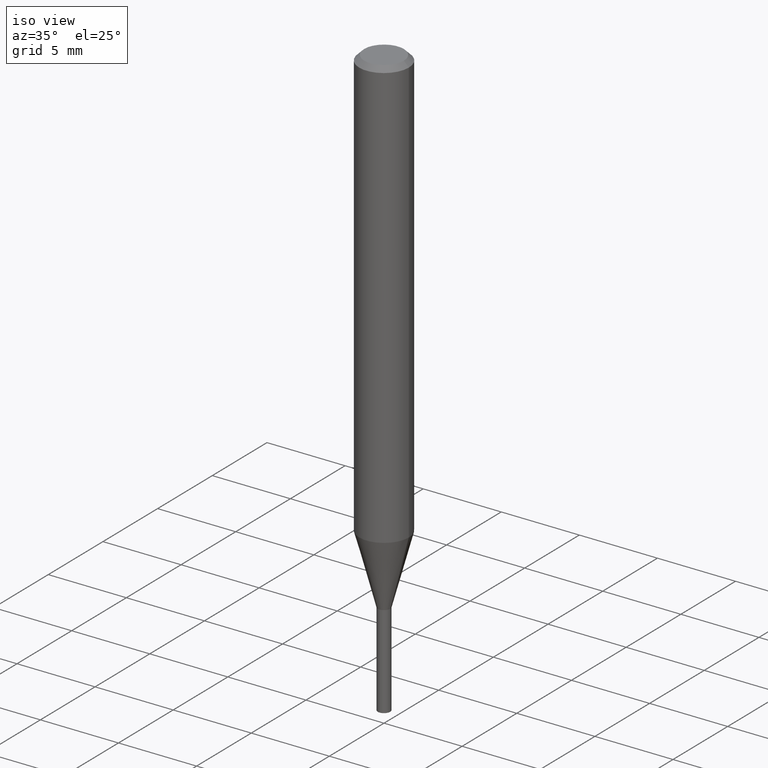
[diagram: clean part render]
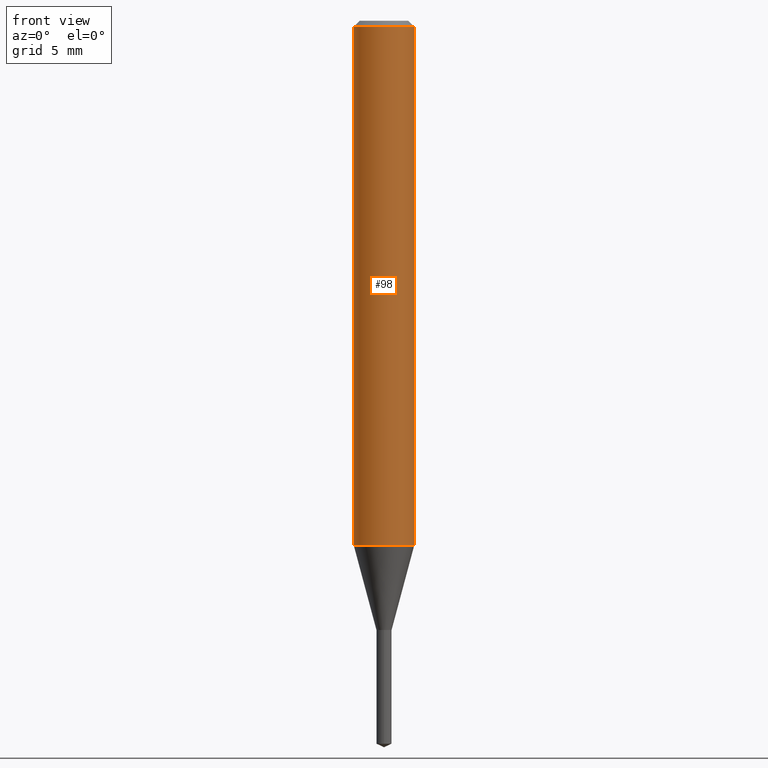
[diagram: tour spotlight — one face highlighted and labeled with its STEP entity id]
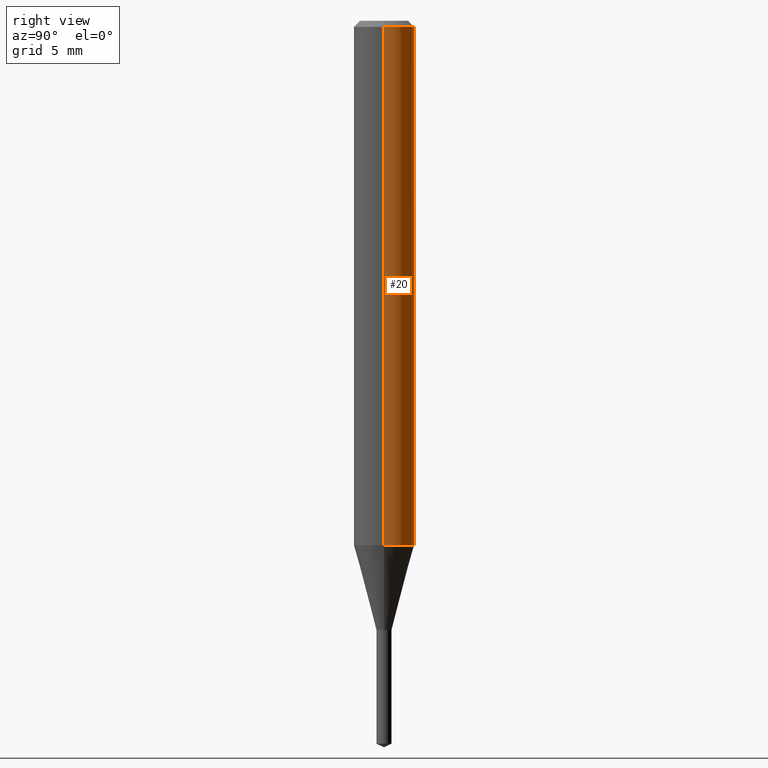
[diagram: tour spotlight — one face highlighted and labeled with its STEP entity id]
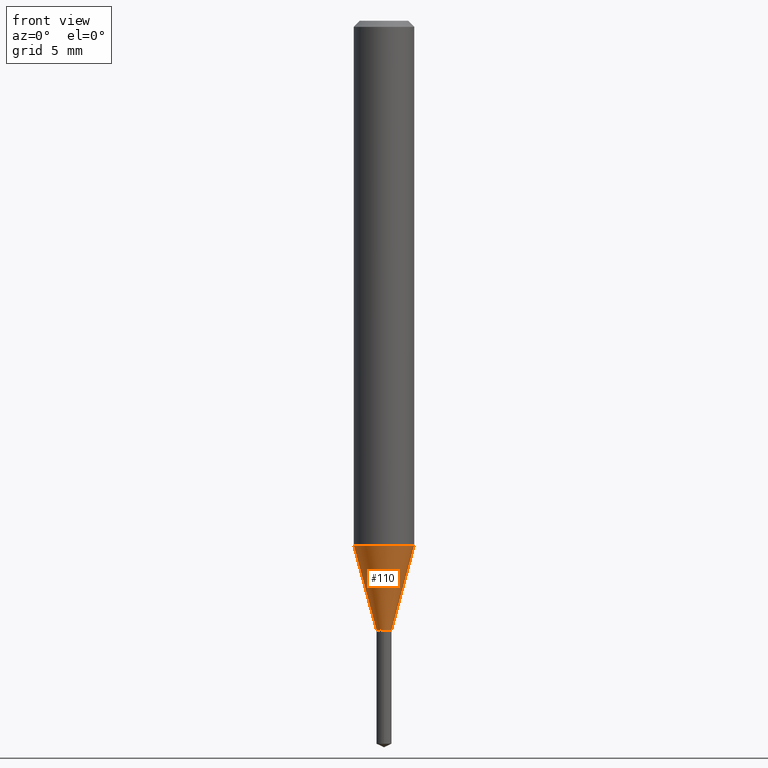
[diagram: tour spotlight — one face highlighted and labeled with its STEP entity id]
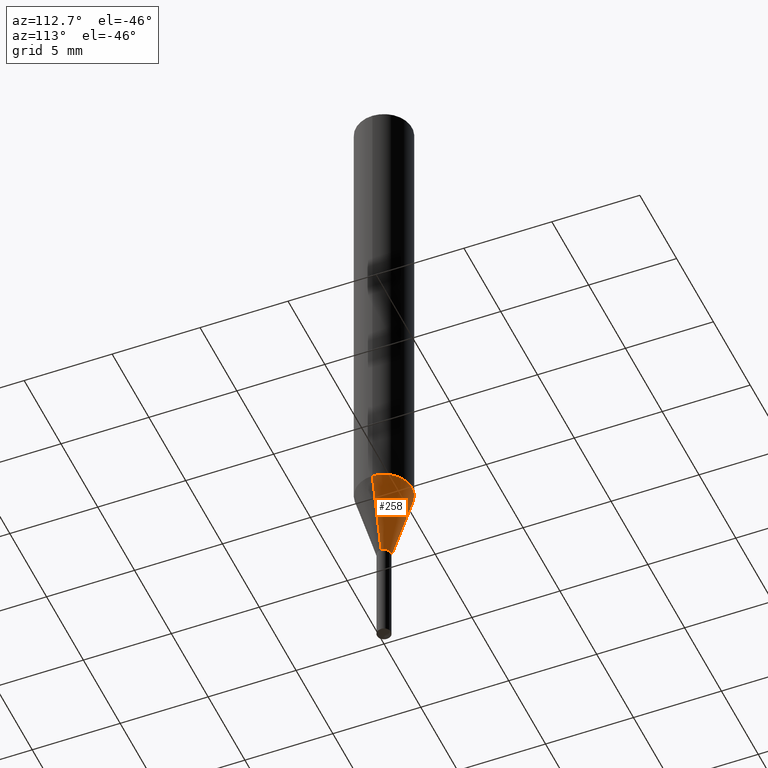
[diagram: tour spotlight — one face highlighted and labeled with its STEP entity id]
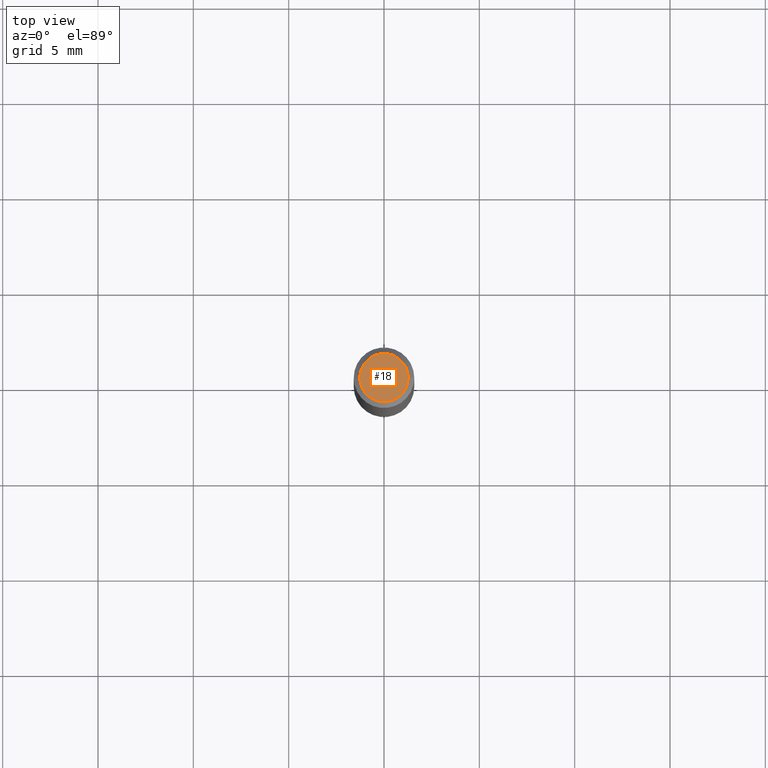
[diagram: tour spotlight — one face highlighted and labeled with its STEP entity id]
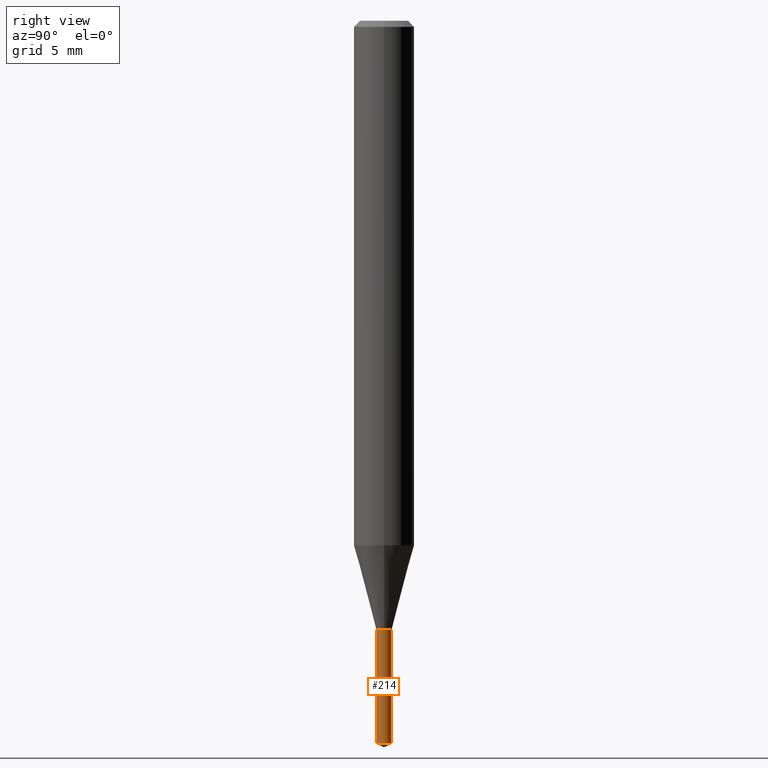
[diagram: tour spotlight — one face highlighted and labeled with its STEP entity id]
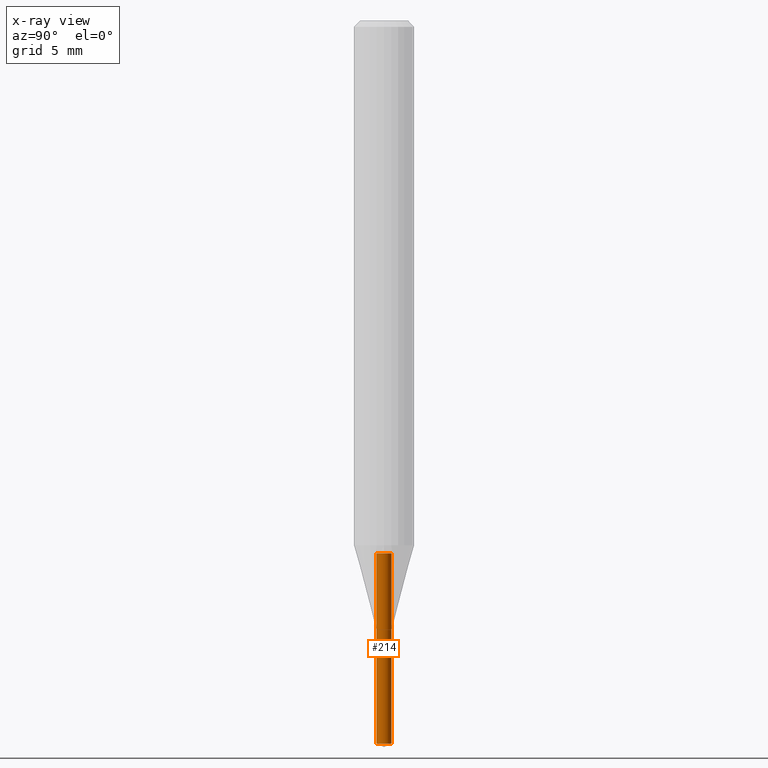
[diagram: x-ray of the same camera — body ghosted, this tour face saturated]
A machine part: a face-by-face anatomy tour. The part has 17 B-rep faces; the first image is the clean iso view, then the 6 largest visible faces are spotlighted one at a time (largest first), each with its STEP entity span.

Face 1 — front view, entity #98. In plain terms, the highlighted cylindrical surface (edge-blend (fillet) strip) has radius 1.5875 mm, axis along (-0, 0, 1).
Definition (entity closure, byte-faithful):
#14 = EDGE_CURVE ( 'NONE', #121, #303, #164, .T. ) ;
#35 = ORIENTED_EDGE ( 'NONE', *, *, #107, .T. ) ;
#49 = ORIENTED_EDGE ( 'NONE', *, *, #14, .F. ) ;
#55 = VECTOR ( 'NONE', #322, 39.37007874015748143 ) ;
#57 = CARTESIAN_POINT ( 'NONE',  ( 0.06250000000000013878, -4.217593599933773657E-15, -1.082966817125024628 ) ) ;
#76 = CIRCLE ( 'NONE', #366, 0.06250000000000013878 ) ;
#98 = ADVANCED_FACE ( 'NONE', ( #435 ), #248, .T. ) ;
#104 = DIRECTION ( 'NONE',  ( -2.445468806185136877E-29, 3.491481338843145188E-15, 1.000000000000000000 ) ) ;
#107 = EDGE_CURVE ( 'NONE', #179, #381, #76, .T. ) ;
#109 = AXIS2_PLACEMENT_3D ( 'NONE', #450, #342, #160 ) ;
#121 = VERTEX_POINT ( 'NONE', #209 ) ;
#129 = DIRECTION ( 'NONE',  ( 1.000000000000000000, -6.982962677686270655E-15, 0.000000000000000000 ) ) ;
#137 = ORIENTED_EDGE ( 'NONE', *, *, #457, .T. ) ;
#159 = CARTESIAN_POINT ( 'NONE',  ( 0.06250000000000006939, -4.364351673553922118E-16, 3.047610484872463724E-30 ) ) ;
#160 = DIRECTION ( 'NONE',  ( 1.000000000000000000, -6.982962677686265922E-15, 0.000000000000000000 ) ) ;
#164 = CIRCLE ( 'NONE', #109, 0.06250000000000001388 ) ;
#166 = LINE ( 'NONE', #180, #378 ) ;
#179 = VERTEX_POINT ( 'NONE', #326 ) ;
#180 = CARTESIAN_POINT ( 'NONE',  ( -0.06250000000000006939, 4.440892098500631092E-16, -3.074334431409319617E-30 ) ) ;
#200 = EDGE_CURVE ( 'NONE', #179, #121, #166, .T. ) ;
#205 = AXIS2_PLACEMENT_3D ( 'NONE', #314, #206, #460 ) ;
#206 = DIRECTION ( 'NONE',  ( -2.445468806185136597E-29, 3.491481338843145583E-15, 1.000000000000000000 ) ) ;
#209 = CARTESIAN_POINT ( 'NONE',  ( -0.06250000000000001388, -1.468311764806896186E-15, -0.01250000000000009263 ) ) ;
#248 = CYLINDRICAL_SURFACE ( 'NONE', #205, 0.06250000000000006939 ) ;
#252 = CARTESIAN_POINT ( 'NONE',  ( 2.648361569412850998E-29, -3.781158432578380410E-15, -1.082966817125024628 ) ) ;
#291 = CARTESIAN_POINT ( 'NONE',  ( 0.06250000000000001388, -4.800786840909313294E-16, -0.01250000000000009263 ) ) ;
#303 = VERTEX_POINT ( 'NONE', #291 ) ;
#310 = ORIENTED_EDGE ( 'NONE', *, *, #200, .F. ) ;
#314 = CARTESIAN_POINT ( 'NONE',  ( 0.000000000000000000, 0.000000000000000000, 0.000000000000000000 ) ) ;
#322 = DIRECTION ( 'NONE',  ( -2.445468806185136877E-29, 3.491481338843145188E-15, 1.000000000000000000 ) ) ;
#326 = CARTESIAN_POINT ( 'NONE',  ( -0.06250000000000013878, -3.337069222728317400E-15, -1.082966817125024628 ) ) ;
#330 = EDGE_LOOP ( 'NONE', ( #310, #35, #137, #49 ) ) ;
#342 = DIRECTION ( 'NONE',  ( -2.445468806185136597E-29, 3.491481338843145583E-15, 1.000000000000000000 ) ) ;
#366 = AXIS2_PLACEMENT_3D ( 'NONE', #252, #466, #129 ) ;
#378 = VECTOR ( 'NONE', #104, 39.37007874015748143 ) ;
#381 = VERTEX_POINT ( 'NONE', #57 ) ;
#420 = LINE ( 'NONE', #159, #55 ) ;
#435 = FACE_OUTER_BOUND ( 'NONE', #330, .T. ) ;
#450 = CARTESIAN_POINT ( 'NONE',  ( 3.056836007731443605E-31, -4.364351673553964149E-17, -0.01250000000000009263 ) ) ;
#457 = EDGE_CURVE ( 'NONE', #381, #303, #420, .T. ) ;
#460 = DIRECTION ( 'NONE',  ( 1.000000000000000000, -6.982962677686267499E-15, 4.876176775795936353E-29 ) ) ;
#466 = DIRECTION ( 'NONE',  ( -2.445468806185136597E-29, 3.491481338843145583E-15, 1.000000000000000000 ) ) ;

Face 2 — right view, entity #20. In plain terms, the highlighted cylindrical surface (edge-blend (fillet) strip) has radius 1.5875 mm, axis along (-0, 0, 1).
Definition (entity closure, byte-faithful):
#20 = ADVANCED_FACE ( 'NONE', ( #40 ), #192, .T. ) ;
#22 = CIRCLE ( 'NONE', #150, 0.06250000000000001388 ) ;
#40 = FACE_OUTER_BOUND ( 'NONE', #418, .T. ) ;
#48 = EDGE_CURVE ( 'NONE', #303, #121, #22, .T. ) ;
#50 = CARTESIAN_POINT ( 'NONE',  ( 3.056836007731443605E-31, -4.364351673553964149E-17, -0.01250000000000009263 ) ) ;
#55 = VECTOR ( 'NONE', #322, 39.37007874015748143 ) ;
#57 = CARTESIAN_POINT ( 'NONE',  ( 0.06250000000000013878, -4.217593599933773657E-15, -1.082966817125024628 ) ) ;
#83 = ORIENTED_EDGE ( 'NONE', *, *, #48, .F. ) ;
#104 = DIRECTION ( 'NONE',  ( -2.445468806185136877E-29, 3.491481338843145188E-15, 1.000000000000000000 ) ) ;
#121 = VERTEX_POINT ( 'NONE', #209 ) ;
#131 = DIRECTION ( 'NONE',  ( -2.445468806185136597E-29, 3.491481338843145583E-15, 1.000000000000000000 ) ) ;
#150 = AXIS2_PLACEMENT_3D ( 'NONE', #50, #131, #323 ) ;
#154 = DIRECTION ( 'NONE',  ( -2.445468806185136597E-29, 3.491481338843145583E-15, 1.000000000000000000 ) ) ;
#159 = CARTESIAN_POINT ( 'NONE',  ( 0.06250000000000006939, -4.364351673553922118E-16, 3.047610484872463724E-30 ) ) ;
#166 = LINE ( 'NONE', #180, #378 ) ;
#179 = VERTEX_POINT ( 'NONE', #326 ) ;
#180 = CARTESIAN_POINT ( 'NONE',  ( -0.06250000000000006939, 4.440892098500631092E-16, -3.074334431409319617E-30 ) ) ;
#182 = ORIENTED_EDGE ( 'NONE', *, *, #345, .T. ) ;
#192 = CYLINDRICAL_SURFACE ( 'NONE', #446, 0.06250000000000006939 ) ;
#197 = CIRCLE ( 'NONE', #253, 0.06250000000000013878 ) ;
#200 = EDGE_CURVE ( 'NONE', #179, #121, #166, .T. ) ;
#208 = DIRECTION ( 'NONE',  ( 1.000000000000000000, -6.982962677686270655E-15, 0.000000000000000000 ) ) ;
#209 = CARTESIAN_POINT ( 'NONE',  ( -0.06250000000000001388, -1.468311764806896186E-15, -0.01250000000000009263 ) ) ;
#253 = AXIS2_PLACEMENT_3D ( 'NONE', #257, #490, #208 ) ;
#257 = CARTESIAN_POINT ( 'NONE',  ( 2.648361569412850998E-29, -3.781158432578380410E-15, -1.082966817125024628 ) ) ;
#291 = CARTESIAN_POINT ( 'NONE',  ( 0.06250000000000001388, -4.800786840909313294E-16, -0.01250000000000009263 ) ) ;
#303 = VERTEX_POINT ( 'NONE', #291 ) ;
#305 = DIRECTION ( 'NONE',  ( 1.000000000000000000, -6.982962677686267499E-15, 4.876176775795936353E-29 ) ) ;
#322 = DIRECTION ( 'NONE',  ( -2.445468806185136877E-29, 3.491481338843145188E-15, 1.000000000000000000 ) ) ;
#323 = DIRECTION ( 'NONE',  ( 1.000000000000000000, -6.982962677686265922E-15, 0.000000000000000000 ) ) ;
#326 = CARTESIAN_POINT ( 'NONE',  ( -0.06250000000000013878, -3.337069222728317400E-15, -1.082966817125024628 ) ) ;
#345 = EDGE_CURVE ( 'NONE', #381, #179, #197, .T. ) ;
#378 = VECTOR ( 'NONE', #104, 39.37007874015748143 ) ;
#381 = VERTEX_POINT ( 'NONE', #57 ) ;
#404 = ORIENTED_EDGE ( 'NONE', *, *, #200, .T. ) ;
#418 = EDGE_LOOP ( 'NONE', ( #182, #404, #83, #456 ) ) ;
#420 = LINE ( 'NONE', #159, #55 ) ;
#446 = AXIS2_PLACEMENT_3D ( 'NONE', #489, #154, #305 ) ;
#456 = ORIENTED_EDGE ( 'NONE', *, *, #457, .F. ) ;
#457 = EDGE_CURVE ( 'NONE', #381, #303, #420, .T. ) ;
#489 = CARTESIAN_POINT ( 'NONE',  ( 0.000000000000000000, 0.000000000000000000, 0.000000000000000000 ) ) ;
#490 = DIRECTION ( 'NONE',  ( -2.445468806185136597E-29, 3.491481338843145583E-15, 1.000000000000000000 ) ) ;

Face 3 — front view, entity #110. In plain terms, the highlighted conical surface has half-angle 15 deg.
Definition (entity closure, byte-faithful):
#2 = AXIS2_PLACEMENT_3D ( 'NONE', #185, #371, #26 ) ;
#12 = FACE_OUTER_BOUND ( 'NONE', #69, .T. ) ;
#26 = DIRECTION ( 'NONE',  ( 1.000000000000000000, -6.982962677686283277E-15, 0.000000000000000000 ) ) ;
#37 = LINE ( 'NONE', #196, #453 ) ;
#54 = VECTOR ( 'NONE', #73, 39.37007874015748854 ) ;
#57 = CARTESIAN_POINT ( 'NONE',  ( 0.06250000000000013878, -4.217593599933773657E-15, -1.082966817125024628 ) ) ;
#69 = EDGE_LOOP ( 'NONE', ( #458, #380, #476, #219 ) ) ;
#73 = DIRECTION ( 'NONE',  ( 0.2588190451025281225, 1.565188264969568128E-15, 0.9659258262890662028 ) ) ;
#76 = CIRCLE ( 'NONE', #366, 0.06250000000000013878 ) ;
#90 = CONICAL_SURFACE ( 'NONE', #213, 0.01559999999999999928, 0.2617993877991570684 ) ;
#106 = CARTESIAN_POINT ( 'NONE',  ( 0.01559999999999999928, -4.501217742036583084E-15, -1.258000000000000007 ) ) ;
#107 = EDGE_CURVE ( 'NONE', #179, #381, #76, .T. ) ;
#110 = ADVANCED_FACE ( 'NONE', ( #12 ), #90, .T. ) ;
#129 = DIRECTION ( 'NONE',  ( 1.000000000000000000, -6.982962677686270655E-15, 0.000000000000000000 ) ) ;
#179 = VERTEX_POINT ( 'NONE', #326 ) ;
#185 = CARTESIAN_POINT ( 'NONE',  ( 3.076399758180902206E-29, -4.392283524264677317E-15, -1.258000000000000007 ) ) ;
#196 = CARTESIAN_POINT ( 'NONE',  ( -0.01559999999999999928, -4.281438857486102063E-15, -1.258000000000000007 ) ) ;
#213 = AXIS2_PLACEMENT_3D ( 'NONE', #399, #284, #352 ) ;
#215 = LINE ( 'NONE', #106, #54 ) ;
#219 = ORIENTED_EDGE ( 'NONE', *, *, #107, .F. ) ;
#226 = CARTESIAN_POINT ( 'NONE',  ( -0.01559999999999999928, -4.004738961382782309E-15, -1.258000000000000007 ) ) ;
#229 = EDGE_CURVE ( 'NONE', #423, #381, #215, .T. ) ;
#252 = CARTESIAN_POINT ( 'NONE',  ( 2.648361569412850998E-29, -3.781158432578380410E-15, -1.082966817125024628 ) ) ;
#255 = VERTEX_POINT ( 'NONE', #226 ) ;
#284 = DIRECTION ( 'NONE',  ( -2.445468806185136597E-29, 3.491481338843145583E-15, 1.000000000000000000 ) ) ;
#318 = CARTESIAN_POINT ( 'NONE',  ( 0.01559999999999999928, -4.501217742036583084E-15, -1.258000000000000007 ) ) ;
#326 = CARTESIAN_POINT ( 'NONE',  ( -0.06250000000000013878, -3.337069222728317400E-15, -1.082966817125024628 ) ) ;
#336 = EDGE_CURVE ( 'NONE', #255, #423, #461, .T. ) ;
#349 = EDGE_CURVE ( 'NONE', #255, #179, #37, .T. ) ;
#352 = DIRECTION ( 'NONE',  ( 1.000000000000000000, -6.982962677686283277E-15, 0.000000000000000000 ) ) ;
#366 = AXIS2_PLACEMENT_3D ( 'NONE', #252, #466, #129 ) ;
#371 = DIRECTION ( 'NONE',  ( -2.445468806185136597E-29, 3.491481338843145583E-15, 1.000000000000000000 ) ) ;
#380 = ORIENTED_EDGE ( 'NONE', *, *, #336, .T. ) ;
#381 = VERTEX_POINT ( 'NONE', #57 ) ;
#399 = CARTESIAN_POINT ( 'NONE',  ( 3.076399758180902206E-29, -4.392283524264677317E-15, -1.258000000000000007 ) ) ;
#423 = VERTEX_POINT ( 'NONE', #318 ) ;
#453 = VECTOR ( 'NONE', #467, 39.37007874015748854 ) ;
#458 = ORIENTED_EDGE ( 'NONE', *, *, #349, .F. ) ;
#461 = CIRCLE ( 'NONE', #2, 0.01559999999999999928 ) ;
#466 = DIRECTION ( 'NONE',  ( -2.445468806185136597E-29, 3.491481338843145583E-15, 1.000000000000000000 ) ) ;
#467 = DIRECTION ( 'NONE',  ( -0.2588190451025281225, 5.211531920934590485E-15, 0.9659258262890662028 ) ) ;
#476 = ORIENTED_EDGE ( 'NONE', *, *, #229, .T. ) ;

Face 4 — auxiliary view, entity #258. In plain terms, the highlighted conical surface has half-angle 15 deg.
Definition (entity closure, byte-faithful):
#34 = DIRECTION ( 'NONE',  ( -2.445468806185136597E-29, 3.491481338843145583E-15, 1.000000000000000000 ) ) ;
#37 = LINE ( 'NONE', #196, #453 ) ;
#54 = VECTOR ( 'NONE', #73, 39.37007874015748854 ) ;
#57 = CARTESIAN_POINT ( 'NONE',  ( 0.06250000000000013878, -4.217593599933773657E-15, -1.082966817125024628 ) ) ;
#73 = DIRECTION ( 'NONE',  ( 0.2588190451025281225, 1.565188264969568128E-15, 0.9659258262890662028 ) ) ;
#85 = CARTESIAN_POINT ( 'NONE',  ( 3.076399758180902206E-29, -4.392283524264677317E-15, -1.258000000000000007 ) ) ;
#106 = CARTESIAN_POINT ( 'NONE',  ( 0.01559999999999999928, -4.501217742036583084E-15, -1.258000000000000007 ) ) ;
#171 = EDGE_CURVE ( 'NONE', #423, #255, #307, .T. ) ;
#174 = DIRECTION ( 'NONE',  ( -2.445468806185136597E-29, 3.491481338843145583E-15, 1.000000000000000000 ) ) ;
#175 = CONICAL_SURFACE ( 'NONE', #347, 0.01559999999999999928, 0.2617993877991570684 ) ;
#179 = VERTEX_POINT ( 'NONE', #326 ) ;
#186 = ORIENTED_EDGE ( 'NONE', *, *, #229, .F. ) ;
#196 = CARTESIAN_POINT ( 'NONE',  ( -0.01559999999999999928, -4.281438857486102063E-15, -1.258000000000000007 ) ) ;
#197 = CIRCLE ( 'NONE', #253, 0.06250000000000013878 ) ;
#208 = DIRECTION ( 'NONE',  ( 1.000000000000000000, -6.982962677686270655E-15, 0.000000000000000000 ) ) ;
#215 = LINE ( 'NONE', #106, #54 ) ;
#221 = DIRECTION ( 'NONE',  ( 1.000000000000000000, -6.982962677686283277E-15, 0.000000000000000000 ) ) ;
#226 = CARTESIAN_POINT ( 'NONE',  ( -0.01559999999999999928, -4.004738961382782309E-15, -1.258000000000000007 ) ) ;
#229 = EDGE_CURVE ( 'NONE', #423, #381, #215, .T. ) ;
#243 = DIRECTION ( 'NONE',  ( 1.000000000000000000, -6.982962677686283277E-15, 0.000000000000000000 ) ) ;
#253 = AXIS2_PLACEMENT_3D ( 'NONE', #257, #490, #208 ) ;
#255 = VERTEX_POINT ( 'NONE', #226 ) ;
#257 = CARTESIAN_POINT ( 'NONE',  ( 2.648361569412850998E-29, -3.781158432578380410E-15, -1.082966817125024628 ) ) ;
#258 = ADVANCED_FACE ( 'NONE', ( #298 ), #175, .T. ) ;
#298 = FACE_OUTER_BOUND ( 'NONE', #334, .T. ) ;
#307 = CIRCLE ( 'NONE', #481, 0.01559999999999999928 ) ;
#318 = CARTESIAN_POINT ( 'NONE',  ( 0.01559999999999999928, -4.501217742036583084E-15, -1.258000000000000007 ) ) ;
#326 = CARTESIAN_POINT ( 'NONE',  ( -0.06250000000000013878, -3.337069222728317400E-15, -1.082966817125024628 ) ) ;
#334 = EDGE_LOOP ( 'NONE', ( #449, #346, #455, #186 ) ) ;
#345 = EDGE_CURVE ( 'NONE', #381, #179, #197, .T. ) ;
#346 = ORIENTED_EDGE ( 'NONE', *, *, #349, .T. ) ;
#347 = AXIS2_PLACEMENT_3D ( 'NONE', #475, #34, #221 ) ;
#349 = EDGE_CURVE ( 'NONE', #255, #179, #37, .T. ) ;
#381 = VERTEX_POINT ( 'NONE', #57 ) ;
#423 = VERTEX_POINT ( 'NONE', #318 ) ;
#449 = ORIENTED_EDGE ( 'NONE', *, *, #171, .T. ) ;
#453 = VECTOR ( 'NONE', #467, 39.37007874015748854 ) ;
#455 = ORIENTED_EDGE ( 'NONE', *, *, #345, .F. ) ;
#467 = DIRECTION ( 'NONE',  ( -0.2588190451025281225, 5.211531920934590485E-15, 0.9659258262890662028 ) ) ;
#475 = CARTESIAN_POINT ( 'NONE',  ( 3.076399758180902206E-29, -4.392283524264677317E-15, -1.258000000000000007 ) ) ;
#481 = AXIS2_PLACEMENT_3D ( 'NONE', #85, #174, #243 ) ;
#490 = DIRECTION ( 'NONE',  ( -2.445468806185136597E-29, 3.491481338843145583E-15, 1.000000000000000000 ) ) ;

Face 5 — top view, entity #18. In plain terms, the highlighted planar face has unit normal (0, -0, -1).
Definition (entity closure, byte-faithful):
#7 = PLANE ( 'NONE',  #237 ) ;
#18 = ADVANCED_FACE ( 'NONE', ( #350 ), #7, .F. ) ;
#113 = CARTESIAN_POINT ( 'NONE',  ( 0.04999999999999999584, -4.077247707424184705E-16, 3.380025165673154903E-19 ) ) ;
#123 = AXIS2_PLACEMENT_3D ( 'NONE', #161, #459, #389 ) ;
#158 = VERTEX_POINT ( 'NONE', #280 ) ;
#161 = CARTESIAN_POINT ( 'NONE',  ( -8.265746106709734507E-48, 1.180129479067563789E-33, 3.380025165646692144E-19 ) ) ;
#169 = DIRECTION ( 'NONE',  ( 1.000000000000000000, -6.982962677686265922E-15, 4.876194921942043128E-29 ) ) ;
#194 = EDGE_LOOP ( 'NONE', ( #306, #484 ) ) ;
#216 = CIRCLE ( 'NONE', #123, 0.04999999999999999584 ) ;
#230 = DIRECTION ( 'NONE',  ( 2.438088387897960049E-29, -3.491481338843145188E-15, -1.000000000000000000 ) ) ;
#237 = AXIS2_PLACEMENT_3D ( 'NONE', #277, #230, #385 ) ;
#238 = DIRECTION ( 'NONE',  ( -2.445468806185136597E-29, 3.491481338843145583E-15, 1.000000000000000000 ) ) ;
#277 = CARTESIAN_POINT ( 'NONE',  ( -4.132873053354867254E-48, 5.900647395337818946E-34, 1.690012582823346072E-19 ) ) ;
#280 = CARTESIAN_POINT ( 'NONE',  ( -0.04999999999999999584, 3.709698922520826725E-16, 3.380025165621512536E-19 ) ) ;
#299 = VERTEX_POINT ( 'NONE', #113 ) ;
#306 = ORIENTED_EDGE ( 'NONE', *, *, #353, .T. ) ;
#316 = CIRCLE ( 'NONE', #470, 0.04999999999999999584 ) ;
#331 = CARTESIAN_POINT ( 'NONE',  ( -8.265746106709734507E-48, 1.180129479067563789E-33, 3.380025165646692144E-19 ) ) ;
#350 = FACE_OUTER_BOUND ( 'NONE', #194, .T. ) ;
#353 = EDGE_CURVE ( 'NONE', #158, #299, #316, .T. ) ;
#385 = DIRECTION ( 'NONE',  ( -1.000000000000000000, 6.982962677686265922E-15, -4.876176775795935793E-29 ) ) ;
#389 = DIRECTION ( 'NONE',  ( 1.000000000000000000, -6.982962677686265922E-15, 4.876194921942043128E-29 ) ) ;
#459 = DIRECTION ( 'NONE',  ( -2.445468806185136597E-29, 3.491481338843145583E-15, 1.000000000000000000 ) ) ;
#470 = AXIS2_PLACEMENT_3D ( 'NONE', #331, #238, #169 ) ;
#484 = ORIENTED_EDGE ( 'NONE', *, *, #487, .T. ) ;
#487 = EDGE_CURVE ( 'NONE', #299, #158, #216, .T. ) ;

Face 6 — right view, entity #214. An x-ray twin of the same camera follows (body ghosted, this face saturated) — the face is partly hidden behind the body. In plain terms, the highlighted cylindrical surface (edge-blend (fillet) strip) has radius 0.3962 mm, axis along (-0, 0, 1).
Definition (entity closure, byte-faithful):
#39 = AXIS2_PLACEMENT_3D ( 'NONE', #321, #468, #286 ) ;
#71 = EDGE_CURVE ( 'NONE', #195, #388, #438, .T. ) ;
#115 = ORIENTED_EDGE ( 'NONE', *, *, #193, .T. ) ;
#128 = CARTESIAN_POINT ( 'NONE',  ( 1.108446667786121827E-16, 0.01559999999999615514, -1.100000000000000089 ) ) ;
#136 = CARTESIAN_POINT ( 'NONE',  ( -1.089342177718788348E-16, -0.01560000000000383996, -1.100000000000000089 ) ) ;
#140 = AXIS2_PLACEMENT_3D ( 'NONE', #329, #403, #375 ) ;
#144 = CYLINDRICAL_SURFACE ( 'NONE', #140, 0.01559999999999999928 ) ;
#145 = ORIENTED_EDGE ( 'NONE', *, *, #71, .F. ) ;
#146 = FACE_OUTER_BOUND ( 'NONE', #382, .T. ) ;
#157 = AXIS2_PLACEMENT_3D ( 'NONE', #411, #223, #295 ) ;
#167 = CARTESIAN_POINT ( 'NONE',  ( 1.108446667786120964E-16, 0.01559999999999478124, -1.492725600532782027 ) ) ;
#190 = VECTOR ( 'NONE', #448, 39.37007874015748143 ) ;
#193 = EDGE_CURVE ( 'NONE', #412, #388, #473, .T. ) ;
#195 = VERTEX_POINT ( 'NONE', #463 ) ;
#210 = EDGE_CURVE ( 'NONE', #259, #412, #355, .T. ) ;
#214 = ADVANCED_FACE ( 'NONE', ( #146 ), #144, .T. ) ;
#223 = DIRECTION ( 'NONE',  ( -2.442957897581693293E-29, 3.495077102875318834E-15, 1.000000000000000000 ) ) ;
#239 = VECTOR ( 'NONE', #354, 39.37007874015748143 ) ;
#259 = VERTEX_POINT ( 'NONE', #368 ) ;
#273 = ORIENTED_EDGE ( 'NONE', *, *, #210, .T. ) ;
#286 = DIRECTION ( 'NONE',  ( -6.982962677686265922E-15, -1.000000000000000000, 0.000000000000000000 ) ) ;
#287 = EDGE_CURVE ( 'NONE', #259, #195, #327, .T. ) ;
#295 = DIRECTION ( 'NONE',  ( -6.982962677686265922E-15, -1.000000000000000000, 0.000000000000000000 ) ) ;
#321 = CARTESIAN_POINT ( 'NONE',  ( 2.690015686803650369E-29, -3.840629472727460101E-15, -1.100000000000000089 ) ) ;
#327 = LINE ( 'NONE', #136, #190 ) ;
#329 = CARTESIAN_POINT ( 'NONE',  ( 2.690015686803650369E-29, -3.840629472727460101E-15, -1.100000000000000089 ) ) ;
#344 = ORIENTED_EDGE ( 'NONE', *, *, #287, .F. ) ;
#354 = DIRECTION ( 'NONE',  ( -2.442957897581693293E-29, 3.495077102875319228E-15, 1.000000000000000000 ) ) ;
#355 = CIRCLE ( 'NONE', #157, 0.01560000000000000102 ) ;
#368 = CARTESIAN_POINT ( 'NONE',  ( -1.089342177718692205E-16, -0.01560000000000521039, -1.492725600532782027 ) ) ;
#375 = DIRECTION ( 'NONE',  ( -6.982962677686265922E-15, -1.000000000000000000, 0.000000000000000000 ) ) ;
#382 = EDGE_LOOP ( 'NONE', ( #273, #115, #145, #344 ) ) ;
#388 = VERTEX_POINT ( 'NONE', #128 ) ;
#401 = CARTESIAN_POINT ( 'NONE',  ( 1.108446667786025068E-16, 0.01559999999999615687, -1.100000000000000089 ) ) ;
#403 = DIRECTION ( 'NONE',  ( -2.442957897581693293E-29, 3.495077102875318834E-15, 1.000000000000000000 ) ) ;
#411 = CARTESIAN_POINT ( 'NONE',  ( 3.649427794207723258E-29, -5.213235726862545823E-15, -1.492725600532782027 ) ) ;
#412 = VERTEX_POINT ( 'NONE', #167 ) ;
#438 = CIRCLE ( 'NONE', #39, 0.01559999999999999928 ) ;
#448 = DIRECTION ( 'NONE',  ( -2.442957897581693293E-29, 3.495077102875319228E-15, 1.000000000000000000 ) ) ;
#463 = CARTESIAN_POINT ( 'NONE',  ( -1.089342177718788348E-16, -0.01560000000000383996, -1.100000000000000089 ) ) ;
#468 = DIRECTION ( 'NONE',  ( -2.442957897581693293E-29, 3.495077102875318834E-15, 1.000000000000000000 ) ) ;
#473 = LINE ( 'NONE', #401, #239 ) ;